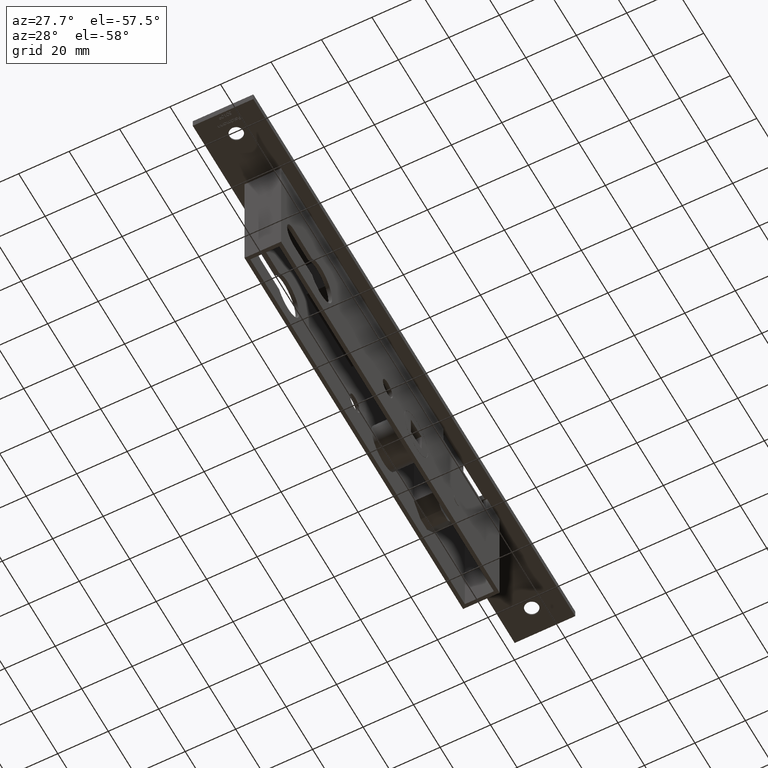
[diagram: clean part render]
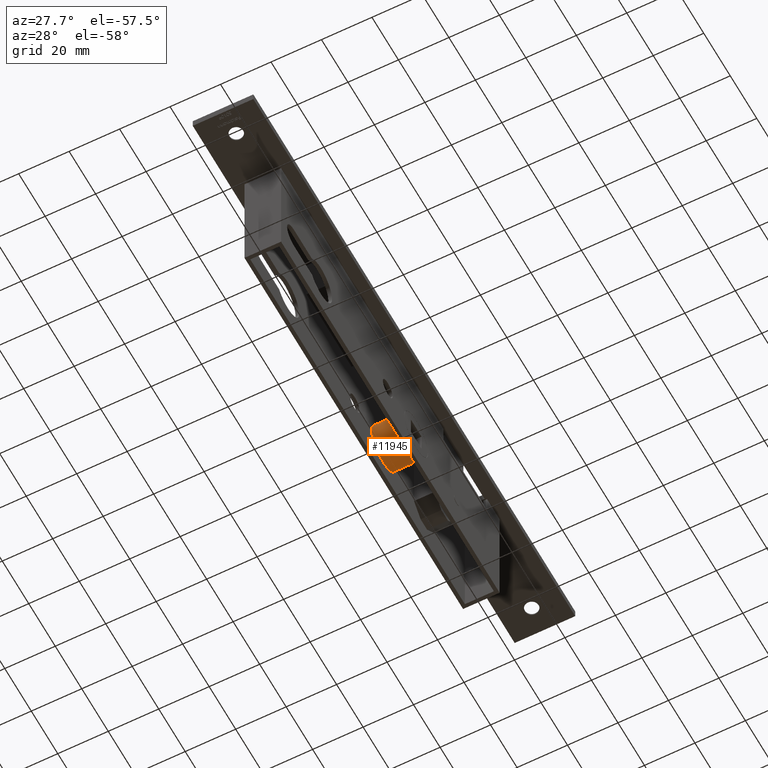
[diagram: same view with one face highlighted and labeled with its STEP entity id]
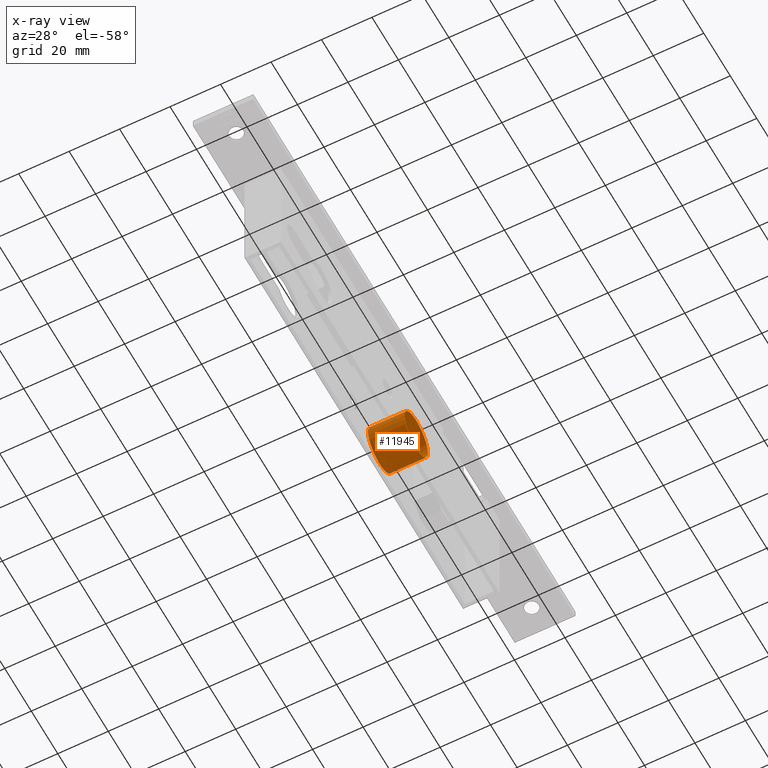
[diagram: x-ray of the same camera — body ghosted, the highlighted face saturated]
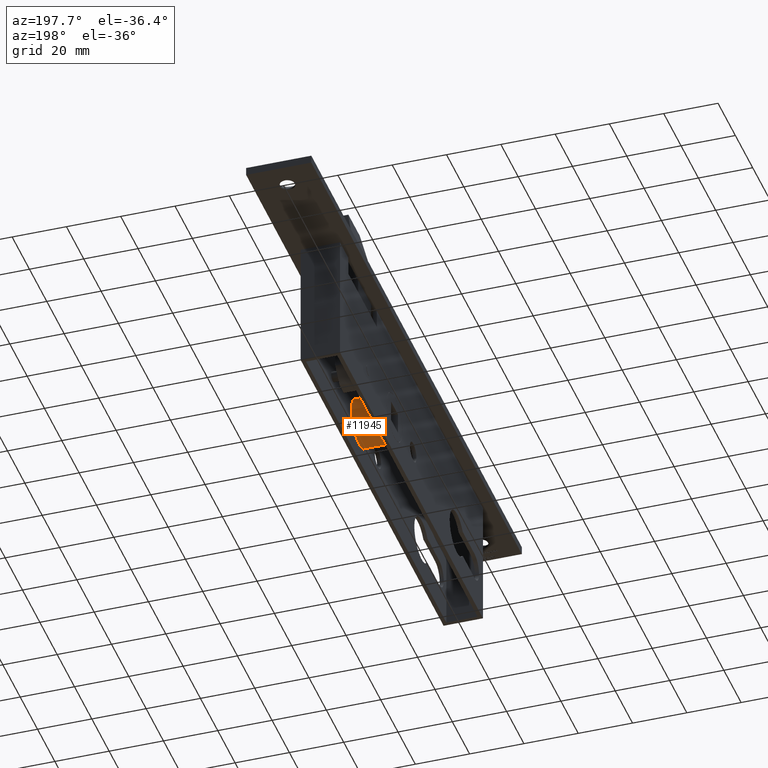
[diagram: same view with one face highlighted and labeled with its STEP entity id]
A machine part, auxiliary view. The second image highlights one B-rep face of the part: STEP entity #11945.
The next image is the same camera in x-ray: the body ghosted, the highlighted face saturated — about 0% of this face is hidden behind the body in this view.
A second angle (auxiliary view) of the same face is appended — the face is thin or edge-on in the first view.
In plain terms, the highlighted cylindrical surface (bore or boss wall) has radius 8.9 mm, axis along (1, -0, -0).
Its self-contained STEP definition (entity closure, byte-faithful):
#468 = CARTESIAN_POINT ( 'NONE',  ( -7.249999999999985789, 140.9000000000000057, -31.99999999999998579 ) ) ;
#903 = CYLINDRICAL_SURFACE ( 'NONE', #10100, 8.899999999999991473 ) ;
#1039 = VERTEX_POINT ( 'NONE', #8786 ) ;
#2398 = DIRECTION ( 'NONE',  ( 1.000000000000000000, -1.095614826932720225E-16, -0.000000000000000000 ) ) ;
#2966 = CARTESIAN_POINT ( 'NONE',  ( 7.250000000000018652, 132.0000000000000000, -31.99999999999998579 ) ) ;
#3735 = DIRECTION ( 'NONE',  ( 1.000000000000000000, -1.419319207617387533E-16, 0.000000000000000000 ) ) ;
#3904 = DIRECTION ( 'NONE',  ( 9.745637505487689626E-17, 1.000000000000000000, 0.000000000000000000 ) ) ;
#4165 = CIRCLE ( 'NONE', #12134, 8.899999999999991473 ) ;
#4342 = EDGE_CURVE ( 'NONE', #4448, #4448, #4165, .T. ) ;
#4448 = VERTEX_POINT ( 'NONE', #468 ) ;
#4809 = CARTESIAN_POINT ( 'NONE',  ( -7.249999999999986677, 132.0000000000000000, -31.99999999999998579 ) ) ;
#5588 = ORIENTED_EDGE ( 'NONE', *, *, #4342, .T. ) ;
#6315 = CIRCLE ( 'NONE', #11325, 8.899999999999991473 ) ;
#6528 = ORIENTED_EDGE ( 'NONE', *, *, #11250, .F. ) ;
#7319 = DIRECTION ( 'NONE',  ( 1.949127501097537925E-16, 1.000000000000000000, 0.000000000000000000 ) ) ;
#7977 = EDGE_LOOP ( 'NONE', ( #5588 ) ) ;
#8685 = EDGE_LOOP ( 'NONE', ( #6528 ) ) ;
#8786 = CARTESIAN_POINT ( 'NONE',  ( 7.250000000000019540, 140.9000000000000057, -31.99999999999998579 ) ) ;
#9358 = CARTESIAN_POINT ( 'NONE',  ( -12.00000000000001243, 132.0000000000000000, -31.99999999999998579 ) ) ;
#10100 = AXIS2_PLACEMENT_3D ( 'NONE', #9358, #2398, #7319 ) ;
#11250 = EDGE_CURVE ( 'NONE', #1039, #1039, #6315, .T. ) ;
#11325 = AXIS2_PLACEMENT_3D ( 'NONE', #2966, #12701, #12660 ) ;
#11945 = ADVANCED_FACE ( 'NONE', ( #12190, #12652 ), #903, .T. ) ;
#12134 = AXIS2_PLACEMENT_3D ( 'NONE', #4809, #3735, #3904 ) ;
#12190 = FACE_OUTER_BOUND ( 'NONE', #7977, .T. ) ;
#12652 = FACE_OUTER_BOUND ( 'NONE', #8685, .T. ) ;
#12660 = DIRECTION ( 'NONE',  ( 9.745637505487689626E-17, 1.000000000000000000, 0.000000000000000000 ) ) ;
#12701 = DIRECTION ( 'NONE',  ( 1.000000000000000000, -1.095614826932720225E-16, 0.000000000000000000 ) ) ;